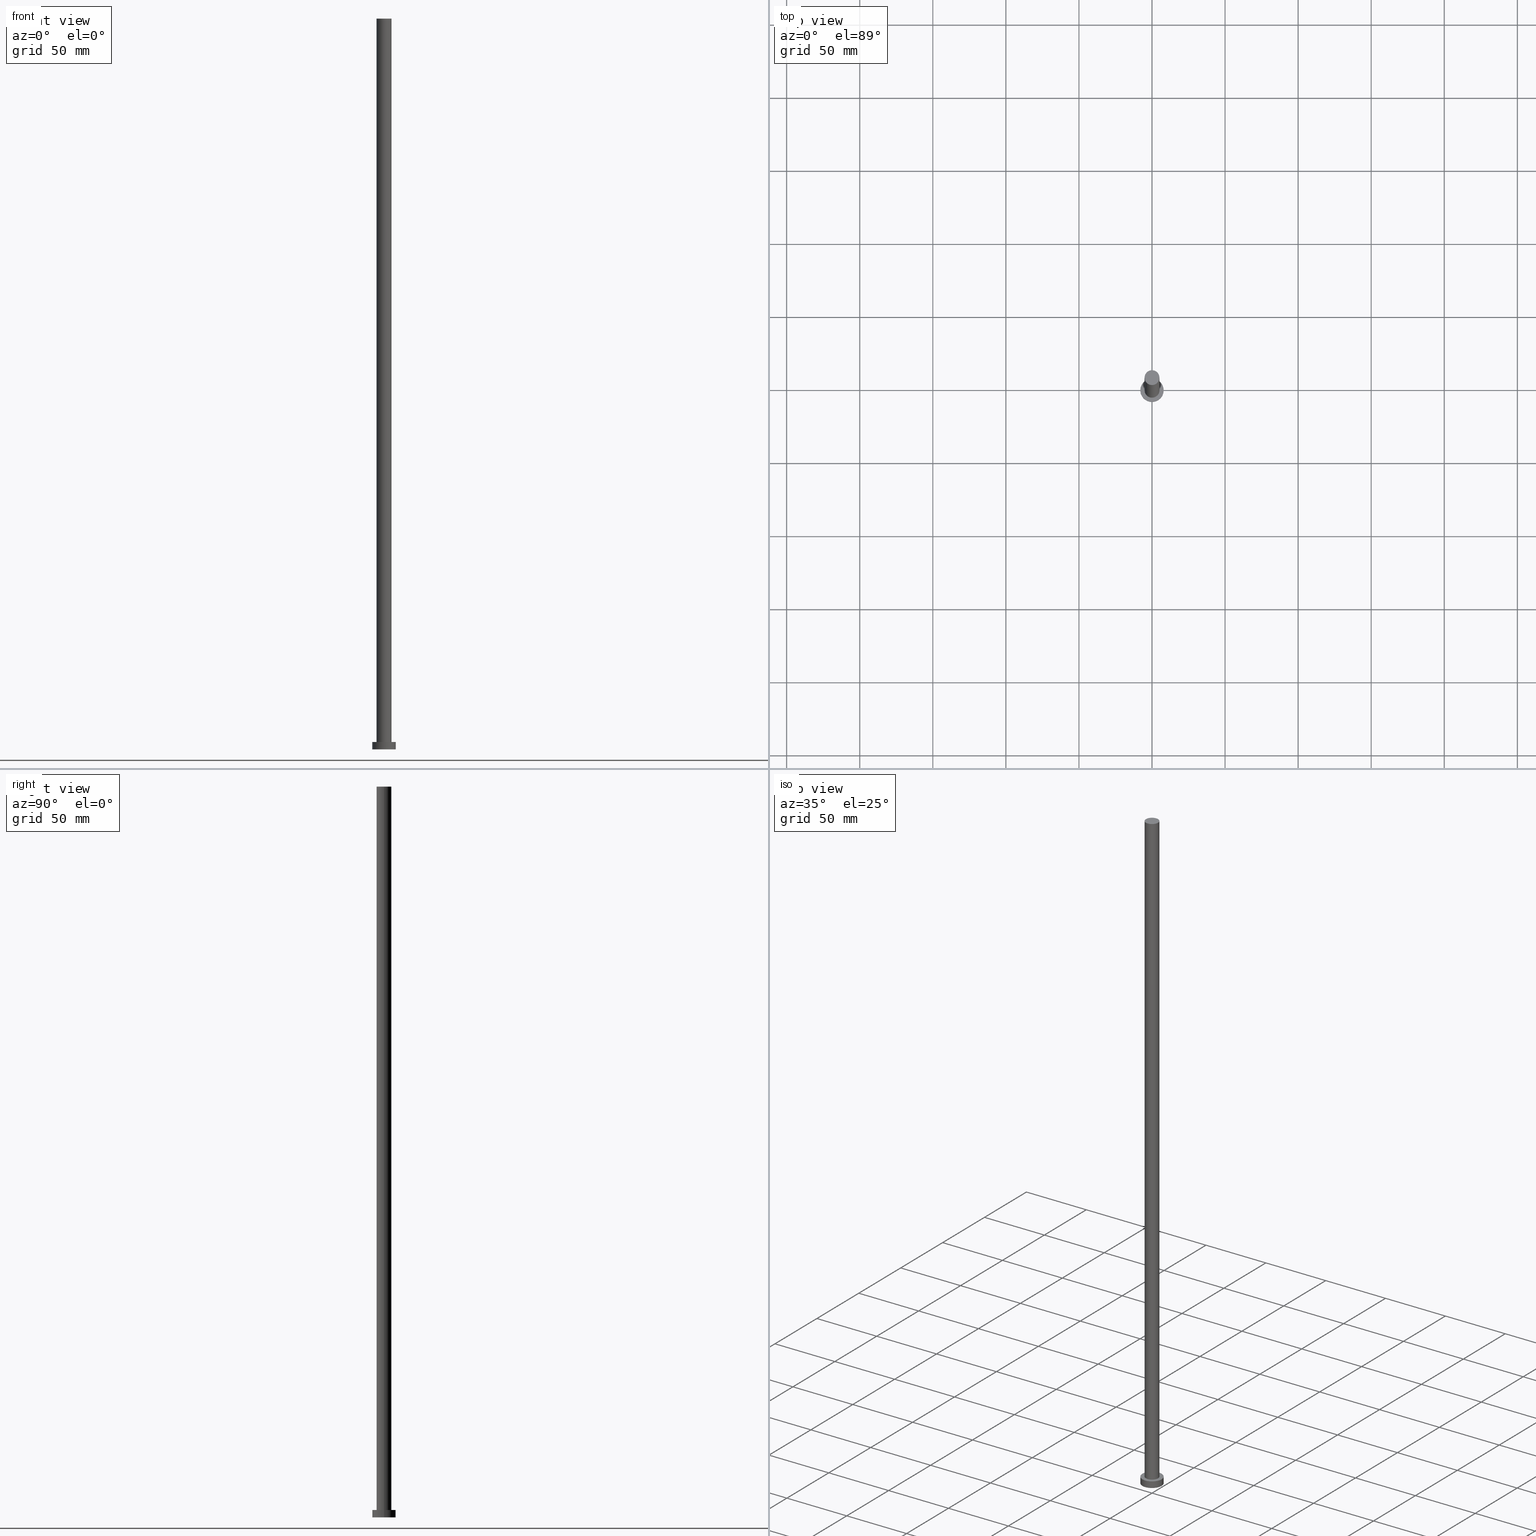
[diagram: canonical four-view strip — front | top / right | iso, engineering-drawing reading convention]
A machine part, canonical four-view strip (front | top / right | iso — engineering-drawing reading convention). The complete STEP part file that produces these views, byte-faithful:
ISO-10303-21;
HEADER;
FILE_DESCRIPTION (( 'STEP AP203' ),
    '1' );
FILE_NAME ('00a0.STEP',
    '2023-02-13T09:56:19',
    ( '' ),
    ( '' ),
    'SwSTEP 2.0',
    'SolidWorks 2019',
    '' );
FILE_SCHEMA (( 'CONFIG_CONTROL_DESIGN' ));
ENDSEC;

DATA;
#1 = DATE_AND_TIME ( #151, #251 ) ;
#2 = ORGANIZATION ( 'NEUR�EN�', 'NEUR�EN�', '' ) ;
#3 = DIRECTION ( 'NONE',  ( -1.000000000000000000, 0.000000000000000000, 0.000000000000000000 ) ) ;
#4 = APPROVAL_DATE_TIME ( #159, #38 ) ;
#5 = ORIENTED_EDGE ( 'NONE', *, *, #33, .F. ) ;
#6 = ADVANCED_FACE ( 'NONE', ( #142 ), #59, .T. ) ;
#7 = ADVANCED_BREP_SHAPE_REPRESENTATION ( '00a0', ( #9, #111 ), #220 ) ;
#8 = MECHANICAL_CONTEXT ( 'NONE', #63, 'mechanical' ) ;
#9 = MANIFOLD_SOLID_BREP ( 'P�idat vysunut�m3', #250 ) ;
#10 = CARTESIAN_POINT ( 'NONE',  ( -8.000000000000000000, 0.000000000000000000, 0.000000000000000000 ) ) ;
#11 = LINE ( 'NONE', #196, #164 ) ;
#12 = UNCERTAINTY_MEASURE_WITH_UNIT (LENGTH_MEASURE( 1.000000000000000082E-05 ), #191, 'distance_accuracy_value', 'NONE');
#13 = AXIS2_PLACEMENT_3D ( 'NONE', #247, #171, #227 ) ;
#14 = ADVANCED_FACE ( 'NONE', ( #121 ), #80, .T. ) ;
#15 = COORDINATED_UNIVERSAL_TIME_OFFSET ( 1, 0, .AHEAD. ) ;
#16 = ORIENTED_EDGE ( 'NONE', *, *, #41, .T. ) ;
#17 = ADVANCED_FACE ( 'NONE', ( #66 ), #224, .T. ) ;
#18 = APPROVAL_ROLE ( '' ) ;
#19 = EDGE_LOOP ( 'NONE', ( #57, #116 ) ) ;
#20 = DATE_TIME_ROLE ( 'classification_date' ) ;
#21 = ADVANCED_FACE ( 'NONE', ( #144 ), #42, .F. ) ;
#22 = AXIS2_PLACEMENT_3D ( 'NONE', #138, #65, #88 ) ;
#23 = APPLICATION_PROTOCOL_DEFINITION ( 'international standard', 'config_control_design', 1994, #63 ) ;
#24 = DIRECTION ( 'NONE',  ( 1.000000000000000000, 0.000000000000000000, 0.000000000000000000 ) ) ;
#25 = CARTESIAN_POINT ( 'NONE',  ( 8.000000000000000000, 9.797174393178825657E-16, 0.000000000000000000 ) ) ;
#26 = DATE_AND_TIME ( #210, #56 ) ;
#27 = DIRECTION ( 'NONE',  ( 1.000000000000000000, 0.000000000000000000, 0.000000000000000000 ) ) ;
#28 = CARTESIAN_POINT ( 'NONE',  ( 5.100000000000001421, 6.245698675651502811E-16, 500.0000000000000000 ) ) ;
#29 = LOCAL_TIME ( 10, 56, 19.00000000000000000, #30 ) ;
#30 = COORDINATED_UNIVERSAL_TIME_OFFSET ( 1, 0, .AHEAD. ) ;
#31 = ORIENTED_EDGE ( 'NONE', *, *, #189, .T. ) ;
#32 = CALENDAR_DATE ( 2023, 13, 2 ) ;
#33 = EDGE_CURVE ( 'NONE', #241, #99, #201, .T. ) ;
#34 = ORIENTED_EDGE ( 'NONE', *, *, #245, .T. ) ;
#35 = APPROVAL_DATE_TIME ( #103, #75 ) ;
#36 = CARTESIAN_POINT ( 'NONE',  ( 0.000000000000000000, 0.000000000000000000, 5.000000000000000000 ) ) ;
#37 = ORIENTED_EDGE ( 'NONE', *, *, #112, .F. ) ;
#38 = APPROVAL ( #79, 'NEUR�EN�' ) ;
#39 = CARTESIAN_POINT ( 'NONE',  ( 0.000000000000000000, 0.000000000000000000, 0.000000000000000000 ) ) ;
#40 = CARTESIAN_POINT ( 'NONE',  ( 0.000000000000000000, 0.000000000000000000, 500.0000000000000000 ) ) ;
#41 = EDGE_CURVE ( 'NONE', #99, #241, #235, .T. ) ;
#42 = PLANE ( 'NONE',  #49 ) ;
#43 = AXIS2_PLACEMENT_3D ( 'NONE', #114, #232, #69 ) ;
#44 = DIRECTION ( 'NONE',  ( 1.000000000000000000, 0.000000000000000000, 0.000000000000000000 ) ) ;
#45 = CC_DESIGN_SECURITY_CLASSIFICATION ( #92, ( #78 ) ) ;
#46 = DIRECTION ( 'NONE',  ( 0.000000000000000000, 0.000000000000000000, 1.000000000000000000 ) ) ;
#47 = PRODUCT ( '00a0', '00a0', '', ( #8 ) ) ;
#48 = DIRECTION ( 'NONE',  ( -1.000000000000000000, 0.000000000000000000, 0.000000000000000000 ) ) ;
#49 = AXIS2_PLACEMENT_3D ( 'NONE', #39, #202, #123 ) ;
#50 = DIRECTION ( 'NONE',  ( -0.000000000000000000, -0.000000000000000000, -1.000000000000000000 ) ) ;
#51 = AXIS2_PLACEMENT_3D ( 'NONE', #96, #76, #48 ) ;
#52 = DIRECTION ( 'NONE',  ( 0.000000000000000000, 0.000000000000000000, 1.000000000000000000 ) ) ;
#53 = CARTESIAN_POINT ( 'NONE',  ( -8.000000000000000000, 0.000000000000000000, 5.000000000000000000 ) ) ;
#54 = APPROVAL_ROLE ( '' ) ;
#55 = ORIENTED_EDGE ( 'NONE', *, *, #213, .T. ) ;
#56 = LOCAL_TIME ( 10, 56, 19.00000000000000000, #229 ) ;
#57 = ORIENTED_EDGE ( 'NONE', *, *, #155, .F. ) ;
#58 = PERSON_AND_ORGANIZATION ( #141, #2 ) ;
#59 = CYLINDRICAL_SURFACE ( 'NONE', #170, 8.000000000000000000 ) ;
#60 = ORIENTED_EDGE ( 'NONE', *, *, #236, .F. ) ;
#61 = EDGE_LOOP ( 'NONE', ( #177, #34, #55, #221 ) ) ;
#62 = EDGE_CURVE ( 'NONE', #190, #192, #246, .T. ) ;
#63 = APPLICATION_CONTEXT ( 'configuration controlled 3d designs of mechanical parts and assemblies' ) ;
#64 = DIRECTION ( 'NONE',  ( 0.000000000000000000, 0.000000000000000000, 1.000000000000000000 ) ) ;
#65 = DIRECTION ( 'NONE',  ( -0.000000000000000000, -0.000000000000000000, -1.000000000000000000 ) ) ;
#66 = FACE_OUTER_BOUND ( 'NONE', #153, .T. ) ;
#67 = DIRECTION ( 'NONE',  ( -0.000000000000000000, -0.000000000000000000, -1.000000000000000000 ) ) ;
#68 = APPROVAL_STATUS ( 'not_yet_approved' ) ;
#69 = DIRECTION ( 'NONE',  ( -1.000000000000000000, 0.000000000000000000, 0.000000000000000000 ) ) ;
#70 = PERSON_AND_ORGANIZATION ( #141, #2 ) ;
#71 = CARTESIAN_POINT ( 'NONE',  ( -5.100000000000001421, 0.000000000000000000, 5.000000000000000000 ) ) ;
#72 = DIRECTION ( 'NONE',  ( 1.000000000000000000, 0.000000000000000000, 0.000000000000000000 ) ) ;
#73 = EDGE_CURVE ( 'NONE', #241, #175, #185, .T. ) ;
#74 = CARTESIAN_POINT ( 'NONE',  ( 5.100000000000001421, 6.245698675651502811E-16, 5.000000000000000000 ) ) ;
#75 = APPROVAL ( #193, 'NEUR�EN�' ) ;
#76 = DIRECTION ( 'NONE',  ( -0.000000000000000000, -0.000000000000000000, -1.000000000000000000 ) ) ;
#77 = ORIENTED_EDGE ( 'NONE', *, *, #73, .F. ) ;
#78 = PRODUCT_DEFINITION_FORMATION_WITH_SPECIFIED_SOURCE ( 'LIBOVOLN�', '', #47, .NOT_KNOWN. ) ;
#79 = APPROVAL_STATUS ( 'not_yet_approved' ) ;
#80 = CYLINDRICAL_SURFACE ( 'NONE', #22, 5.100000000000001421 ) ;
#81 = DATE_AND_TIME ( #172, #176 ) ;
#82 = DATE_TIME_ROLE ( 'creation_date' ) ;
#83 = DIRECTION ( 'NONE',  ( -0.000000000000000000, -0.000000000000000000, -1.000000000000000000 ) ) ;
#84 = EDGE_LOOP ( 'NONE', ( #5, #101, #238, #143 ) ) ;
#85 = DIRECTION ( 'NONE',  ( 1.000000000000000000, 0.000000000000000000, -0.000000000000000000 ) ) ;
#86 = EDGE_CURVE ( 'NONE', #175, #104, #242, .T. ) ;
#87 = CIRCLE ( 'NONE', #231, 8.000000000000000000 ) ;
#88 = DIRECTION ( 'NONE',  ( -1.000000000000000000, 0.000000000000000000, 0.000000000000000000 ) ) ;
#89 = FACE_OUTER_BOUND ( 'NONE', #173, .T. ) ;
#90 = EDGE_CURVE ( 'NONE', #192, #158, #94, .T. ) ;
#91 = FACE_OUTER_BOUND ( 'NONE', #244, .T. ) ;
#92 = SECURITY_CLASSIFICATION ( '', '', #253 ) ;
#93 = CARTESIAN_POINT ( 'NONE',  ( 0.000000000000000000, 0.000000000000000000, 0.000000000000000000 ) ) ;
#94 = LINE ( 'NONE', #53, #122 ) ;
#95 = VECTOR ( 'NONE', #67, 1000.000000000000000 ) ;
#96 = CARTESIAN_POINT ( 'NONE',  ( 0.000000000000000000, 0.000000000000000000, 500.0000000000000000 ) ) ;
#97 = CC_DESIGN_APPROVAL ( #38, ( #78 ) ) ;
#98 = SHAPE_DEFINITION_REPRESENTATION ( #152, #7 ) ;
#99 = VERTEX_POINT ( 'NONE', #182 ) ;
#100 = AXIS2_PLACEMENT_3D ( 'NONE', #40, #180, #44 ) ;
#101 = ORIENTED_EDGE ( 'NONE', *, *, #73, .T. ) ;
#102 = AXIS2_PLACEMENT_3D ( 'NONE', #127, #186, #131 ) ;
#103 = DATE_AND_TIME ( #32, #243 ) ;
#104 = VERTEX_POINT ( 'NONE', #71 ) ;
#105 = APPROVAL_PERSON_ORGANIZATION ( #70, #222, #181 ) ;
#106 =( NAMED_UNIT ( * ) SI_UNIT ( $, .STERADIAN. ) SOLID_ANGLE_UNIT ( ) );
#107 = ADVANCED_FACE ( 'NONE', ( #230 ), #149, .T. ) ;
#108 = APPLICATION_PROTOCOL_DEFINITION ( 'international standard', 'config_control_design', 1994, #166 ) ;
#109 = PERSON_AND_ORGANIZATION_ROLE ( 'design_owner' ) ;
#110 = CARTESIAN_POINT ( 'NONE',  ( 5.100000000000001421, 6.245698675651502811E-16, 500.0000000000000000 ) ) ;
#111 = AXIS2_PLACEMENT_3D ( 'NONE', #226, #204, #72 ) ;
#112 = EDGE_CURVE ( 'NONE', #104, #175, #160, .T. ) ;
#113 = LINE ( 'NONE', #228, #211 ) ;
#114 = CARTESIAN_POINT ( 'NONE',  ( 0.000000000000000000, 0.000000000000000000, 5.000000000000000000 ) ) ;
#115 = PERSON_AND_ORGANIZATION ( #141, #2 ) ;
#116 = ORIENTED_EDGE ( 'NONE', *, *, #213, .F. ) ;
#117 = ORIENTED_EDGE ( 'NONE', *, *, #236, .T. ) ;
#118 = CC_DESIGN_PERSON_AND_ORGANIZATION_ASSIGNMENT ( #216, #119, ( #92 ) ) ;
#119 = PERSON_AND_ORGANIZATION_ROLE ( 'classification_officer' ) ;
#120 = ORIENTED_EDGE ( 'NONE', *, *, #112, .T. ) ;
#121 = FACE_OUTER_BOUND ( 'NONE', #84, .T. ) ;
#122 = VECTOR ( 'NONE', #50, 1000.000000000000000 ) ;
#123 = DIRECTION ( 'NONE',  ( 1.000000000000000000, 0.000000000000000000, -0.000000000000000000 ) ) ;
#124 = CIRCLE ( 'NONE', #102, 8.000000000000000000 ) ;
#125 = CARTESIAN_POINT ( 'NONE',  ( 0.000000000000000000, 0.000000000000000000, 5.000000000000000000 ) ) ;
#126 = DESIGN_CONTEXT ( 'detailed design', #166, 'design' ) ;
#127 = CARTESIAN_POINT ( 'NONE',  ( 0.000000000000000000, 0.000000000000000000, 5.000000000000000000 ) ) ;
#128 = CC_DESIGN_APPROVAL ( #75, ( #92 ) ) ;
#129 = ORIENTED_EDGE ( 'NONE', *, *, #86, .F. ) ;
#130 = DIRECTION ( 'NONE',  ( 0.000000000000000000, 0.000000000000000000, 1.000000000000000000 ) ) ;
#131 = DIRECTION ( 'NONE',  ( 1.000000000000000000, 0.000000000000000000, 0.000000000000000000 ) ) ;
#132 = PERSON_AND_ORGANIZATION ( #141, #2 ) ;
#133 = CC_DESIGN_PERSON_AND_ORGANIZATION_ASSIGNMENT ( #167, #109, ( #47 ) ) ;
#134 = ORIENTED_EDGE ( 'NONE', *, *, #245, .F. ) ;
#135 = CC_DESIGN_APPROVAL ( #222, ( #183 ) ) ;
#136 = PERSON_AND_ORGANIZATION_ROLE ( 'design_supplier' ) ;
#137 = COORDINATED_UNIVERSAL_TIME_OFFSET ( 1, 0, .AHEAD. ) ;
#138 = CARTESIAN_POINT ( 'NONE',  ( 0.000000000000000000, 0.000000000000000000, 500.0000000000000000 ) ) ;
#139 = AXIS2_PLACEMENT_3D ( 'NONE', #147, #64, #85 ) ;
#140 = DIRECTION ( 'NONE',  ( -0.000000000000000000, -0.000000000000000000, -1.000000000000000000 ) ) ;
#141 = PERSON ( 'NEUR�EN�', 'NEUR�EN�', 'NEUR�EN�', ('NEUR�EN�'), ('NEUR�EN�'), ('NEUR�EN�') ) ;
#142 = FACE_OUTER_BOUND ( 'NONE', #61, .T. ) ;
#143 = ORIENTED_EDGE ( 'NONE', *, *, #189, .F. ) ;
#144 = FACE_OUTER_BOUND ( 'NONE', #19, .T. ) ;
#145 = CIRCLE ( 'NONE', #203, 8.000000000000000000 ) ;
#146 = DIRECTION ( 'NONE',  ( 0.000000000000000000, 0.000000000000000000, 1.000000000000000000 ) ) ;
#147 = CARTESIAN_POINT ( 'NONE',  ( 0.000000000000000000, 0.000000000000000000, 500.0000000000000000 ) ) ;
#148 = PLANE ( 'NONE',  #237 ) ;
#149 = CYLINDRICAL_SURFACE ( 'NONE', #43, 8.000000000000000000 ) ;
#150 = DIRECTION ( 'NONE',  ( -0.000000000000000000, -0.000000000000000000, -1.000000000000000000 ) ) ;
#151 = CALENDAR_DATE ( 2023, 13, 2 ) ;
#152 = PRODUCT_DEFINITION_SHAPE ( 'NONE', 'NONE',  #183 ) ;
#153 = EDGE_LOOP ( 'NONE', ( #16, #217 ) ) ;
#154 = APPROVAL_PERSON_ORGANIZATION ( #58, #75, #18 ) ;
#155 = EDGE_CURVE ( 'NONE', #158, #240, #87, .T. ) ;
#156 = APPROVAL_DATE_TIME ( #26, #222 ) ;
#157 = ORIENTED_EDGE ( 'NONE', *, *, #41, .F. ) ;
#158 = VERTEX_POINT ( 'NONE', #10 ) ;
#159 = DATE_AND_TIME ( #174, #29 ) ;
#160 = CIRCLE ( 'NONE', #194, 5.100000000000001421 ) ;
#161 = CARTESIAN_POINT ( 'NONE',  ( 0.000000000000000000, 0.000000000000000000, 500.0000000000000000 ) ) ;
#162 = CC_DESIGN_PERSON_AND_ORGANIZATION_ASSIGNMENT ( #255, #136, ( #78 ) ) ;
#163 = AXIS2_PLACEMENT_3D ( 'NONE', #125, #205, #207 ) ;
#164 = VECTOR ( 'NONE', #140, 1000.000000000000000 ) ;
#165 = CC_DESIGN_DATE_AND_TIME_ASSIGNMENT ( #1, #82, ( #183 ) ) ;
#166 = APPLICATION_CONTEXT ( 'configuration controlled 3d designs of mechanical parts and assemblies' ) ;
#167 = PERSON_AND_ORGANIZATION ( #141, #2 ) ;
#168 = ADVANCED_FACE ( 'NONE', ( #249, #91 ), #148, .T. ) ;
#169 = DIRECTION ( 'NONE',  ( 0.000000000000000000, 0.000000000000000000, 1.000000000000000000 ) ) ;
#170 = AXIS2_PLACEMENT_3D ( 'NONE', #36, #83, #3 ) ;
#171 = DIRECTION ( 'NONE',  ( 0.000000000000000000, 0.000000000000000000, 1.000000000000000000 ) ) ;
#172 = CALENDAR_DATE ( 2023, 13, 2 ) ;
#173 = EDGE_LOOP ( 'NONE', ( #77, #157, #31, #120 ) ) ;
#174 = CALENDAR_DATE ( 2023, 13, 2 ) ;
#175 = VERTEX_POINT ( 'NONE', #74 ) ;
#176 = LOCAL_TIME ( 10, 56, 19.00000000000000000, #15 ) ;
#177 = ORIENTED_EDGE ( 'NONE', *, *, #62, .F. ) ;
#178 = EDGE_LOOP ( 'NONE', ( #37, #129 ) ) ;
#179 = CC_DESIGN_PERSON_AND_ORGANIZATION_ASSIGNMENT ( #115, #239, ( #78 ) ) ;
#180 = DIRECTION ( 'NONE',  ( 0.000000000000000000, 0.000000000000000000, 1.000000000000000000 ) ) ;
#181 = APPROVAL_ROLE ( '' ) ;
#182 = CARTESIAN_POINT ( 'NONE',  ( -5.100000000000001421, 0.000000000000000000, 500.0000000000000000 ) ) ;
#183 = PRODUCT_DEFINITION ( 'NEZN�M�', '', #78, #126 ) ;
#184 = CARTESIAN_POINT ( 'NONE',  ( 0.000000000000000000, 0.000000000000000000, 5.000000000000000000 ) ) ;
#185 = LINE ( 'NONE', #28, #95 ) ;
#186 = DIRECTION ( 'NONE',  ( 0.000000000000000000, 0.000000000000000000, 1.000000000000000000 ) ) ;
#187 = CARTESIAN_POINT ( 'NONE',  ( 0.000000000000000000, 0.000000000000000000, 5.000000000000000000 ) ) ;
#188 = PERSON_AND_ORGANIZATION ( #141, #2 ) ;
#189 = EDGE_CURVE ( 'NONE', #99, #104, #113, .T. ) ;
#190 = VERTEX_POINT ( 'NONE', #252 ) ;
#191 =( LENGTH_UNIT ( ) NAMED_UNIT ( * ) SI_UNIT ( .MILLI., .METRE. ) );
#192 = VERTEX_POINT ( 'NONE', #248 ) ;
#193 = APPROVAL_STATUS ( 'not_yet_approved' ) ;
#194 = AXIS2_PLACEMENT_3D ( 'NONE', #184, #46, #209 ) ;
#195 = ORIENTED_EDGE ( 'NONE', *, *, #62, .T. ) ;
#196 = CARTESIAN_POINT ( 'NONE',  ( 8.000000000000000000, 9.797174393178825657E-16, 5.000000000000000000 ) ) ;
#197 = EDGE_LOOP ( 'NONE', ( #134, #60, #215, #198 ) ) ;
#198 = ORIENTED_EDGE ( 'NONE', *, *, #155, .T. ) ;
#199 = AXIS2_PLACEMENT_3D ( 'NONE', #161, #146, #223 ) ;
#200 = APPROVAL_PERSON_ORGANIZATION ( #132, #38, #54 ) ;
#201 = CIRCLE ( 'NONE', #199, 5.100000000000001421 ) ;
#202 = DIRECTION ( 'NONE',  ( 0.000000000000000000, 0.000000000000000000, 1.000000000000000000 ) ) ;
#203 = AXIS2_PLACEMENT_3D ( 'NONE', #93, #130, #27 ) ;
#204 = DIRECTION ( 'NONE',  ( 0.000000000000000000, 0.000000000000000000, 1.000000000000000000 ) ) ;
#205 = DIRECTION ( 'NONE',  ( 0.000000000000000000, 0.000000000000000000, 1.000000000000000000 ) ) ;
#206 = PRODUCT_RELATED_PRODUCT_CATEGORY ( 'detail', '', ( #47 ) ) ;
#207 = DIRECTION ( 'NONE',  ( 1.000000000000000000, 0.000000000000000000, 0.000000000000000000 ) ) ;
#208 =( NAMED_UNIT ( * ) PLANE_ANGLE_UNIT ( ) SI_UNIT ( $, .RADIAN. ) );
#209 = DIRECTION ( 'NONE',  ( 1.000000000000000000, 0.000000000000000000, 0.000000000000000000 ) ) ;
#210 = CALENDAR_DATE ( 2023, 13, 2 ) ;
#211 = VECTOR ( 'NONE', #150, 1000.000000000000000 ) ;
#212 = CARTESIAN_POINT ( 'NONE',  ( 0.000000000000000000, 0.000000000000000000, 0.000000000000000000 ) ) ;
#213 = EDGE_CURVE ( 'NONE', #240, #158, #145, .T. ) ;
#214 = DIRECTION ( 'NONE',  ( 1.000000000000000000, 0.000000000000000000, -0.000000000000000000 ) ) ;
#215 = ORIENTED_EDGE ( 'NONE', *, *, #90, .T. ) ;
#216 = PERSON_AND_ORGANIZATION ( #141, #2 ) ;
#217 = ORIENTED_EDGE ( 'NONE', *, *, #33, .T. ) ;
#218 = COORDINATED_UNIVERSAL_TIME_OFFSET ( 1, 0, .AHEAD. ) ;
#219 = PERSON_AND_ORGANIZATION_ROLE ( 'creator' ) ;
#220 =( GEOMETRIC_REPRESENTATION_CONTEXT ( 3 ) GLOBAL_UNCERTAINTY_ASSIGNED_CONTEXT ( ( #12 ) ) GLOBAL_UNIT_ASSIGNED_CONTEXT ( ( #191, #208, #106 ) ) REPRESENTATION_CONTEXT ( 'NONE', 'WORKASPACE' ) );
#221 = ORIENTED_EDGE ( 'NONE', *, *, #90, .F. ) ;
#222 = APPROVAL ( #68, 'NEUR�EN�' ) ;
#223 = DIRECTION ( 'NONE',  ( 1.000000000000000000, 0.000000000000000000, 0.000000000000000000 ) ) ;
#224 = PLANE ( 'NONE',  #139 ) ;
#225 = CC_DESIGN_PERSON_AND_ORGANIZATION_ASSIGNMENT ( #188, #219, ( #183 ) ) ;
#226 = CARTESIAN_POINT ( 'NONE',  ( 0.000000000000000000, 0.000000000000000000, 0.000000000000000000 ) ) ;
#227 = DIRECTION ( 'NONE',  ( 1.000000000000000000, 0.000000000000000000, 0.000000000000000000 ) ) ;
#228 = CARTESIAN_POINT ( 'NONE',  ( -5.100000000000001421, 0.000000000000000000, 500.0000000000000000 ) ) ;
#229 = COORDINATED_UNIVERSAL_TIME_OFFSET ( 1, 0, .AHEAD. ) ;
#230 = FACE_OUTER_BOUND ( 'NONE', #197, .T. ) ;
#231 = AXIS2_PLACEMENT_3D ( 'NONE', #212, #169, #24 ) ;
#232 = DIRECTION ( 'NONE',  ( -0.000000000000000000, -0.000000000000000000, -1.000000000000000000 ) ) ;
#233 = CYLINDRICAL_SURFACE ( 'NONE', #51, 5.100000000000001421 ) ;
#234 = ADVANCED_FACE ( 'NONE', ( #89 ), #233, .T. ) ;
#235 = CIRCLE ( 'NONE', #100, 5.100000000000001421 ) ;
#236 = EDGE_CURVE ( 'NONE', #192, #190, #124, .T. ) ;
#237 = AXIS2_PLACEMENT_3D ( 'NONE', #187, #52, #214 ) ;
#238 = ORIENTED_EDGE ( 'NONE', *, *, #86, .T. ) ;
#239 = PERSON_AND_ORGANIZATION_ROLE ( 'creator' ) ;
#240 = VERTEX_POINT ( 'NONE', #25 ) ;
#241 = VERTEX_POINT ( 'NONE', #110 ) ;
#242 = CIRCLE ( 'NONE', #13, 5.100000000000001421 ) ;
#243 = LOCAL_TIME ( 10, 56, 19.00000000000000000, #218 ) ;
#244 = EDGE_LOOP ( 'NONE', ( #117, #195 ) ) ;
#245 = EDGE_CURVE ( 'NONE', #190, #240, #11, .T. ) ;
#246 = CIRCLE ( 'NONE', #163, 8.000000000000000000 ) ;
#247 = CARTESIAN_POINT ( 'NONE',  ( 0.000000000000000000, 0.000000000000000000, 5.000000000000000000 ) ) ;
#248 = CARTESIAN_POINT ( 'NONE',  ( -8.000000000000000000, 0.000000000000000000, 5.000000000000000000 ) ) ;
#249 = FACE_BOUND ( 'NONE', #178, .T. ) ;
#250 = CLOSED_SHELL ( 'NONE', ( #14, #6, #107, #168, #21, #234, #17 ) ) ;
#251 = LOCAL_TIME ( 10, 56, 19.00000000000000000, #137 ) ;
#252 = CARTESIAN_POINT ( 'NONE',  ( 8.000000000000000000, 9.797174393178825657E-16, 5.000000000000000000 ) ) ;
#253 = SECURITY_CLASSIFICATION_LEVEL ( 'unclassified' ) ;
#254 = CC_DESIGN_DATE_AND_TIME_ASSIGNMENT ( #81, #20, ( #92 ) ) ;
#255 = PERSON_AND_ORGANIZATION ( #141, #2 ) ;
ENDSEC;
END-ISO-10303-21;
